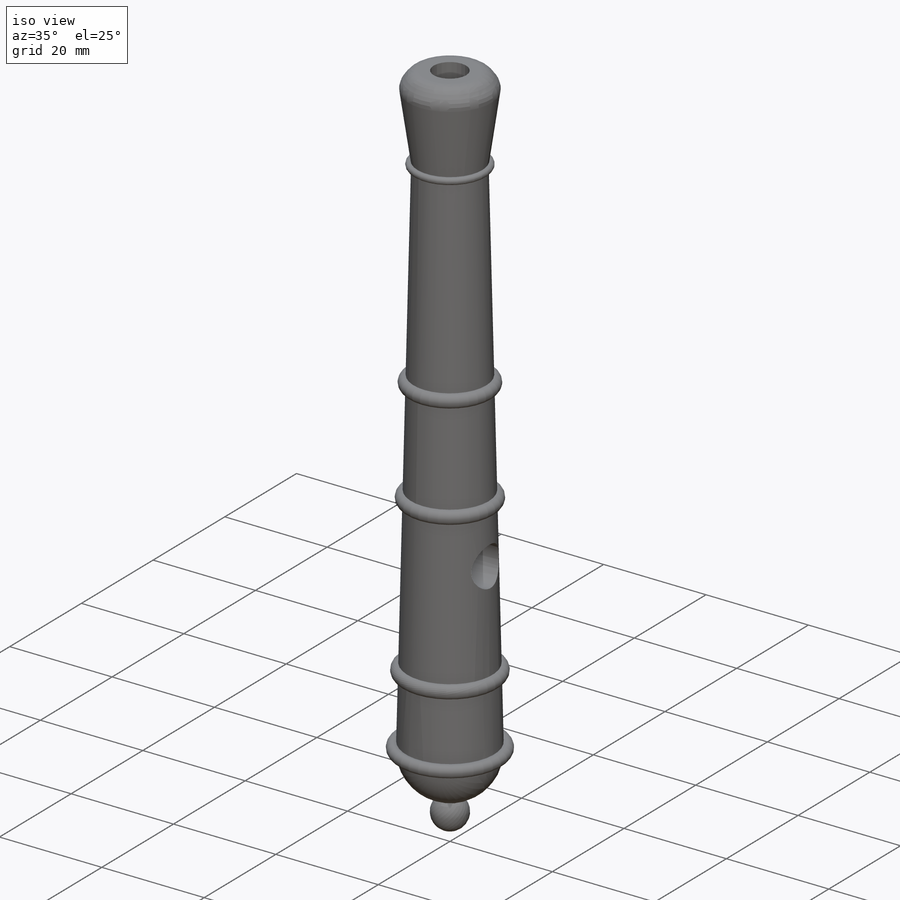
[diagram: iso view]
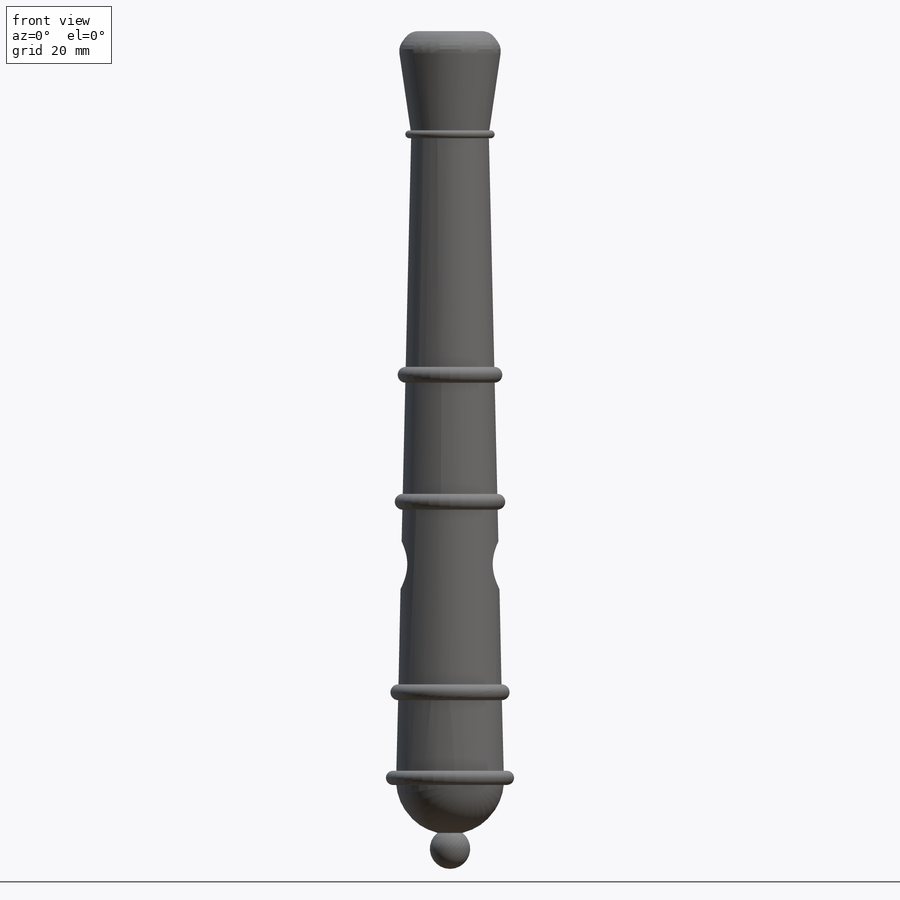
[diagram: front view]
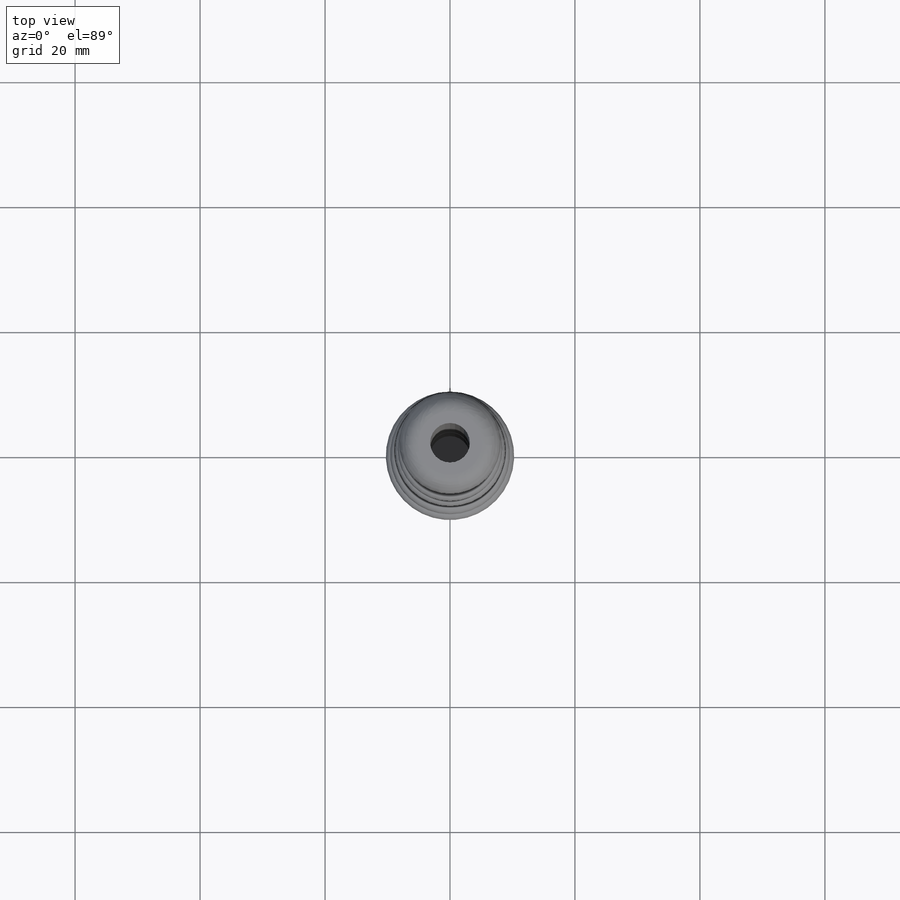
[diagram: top view]
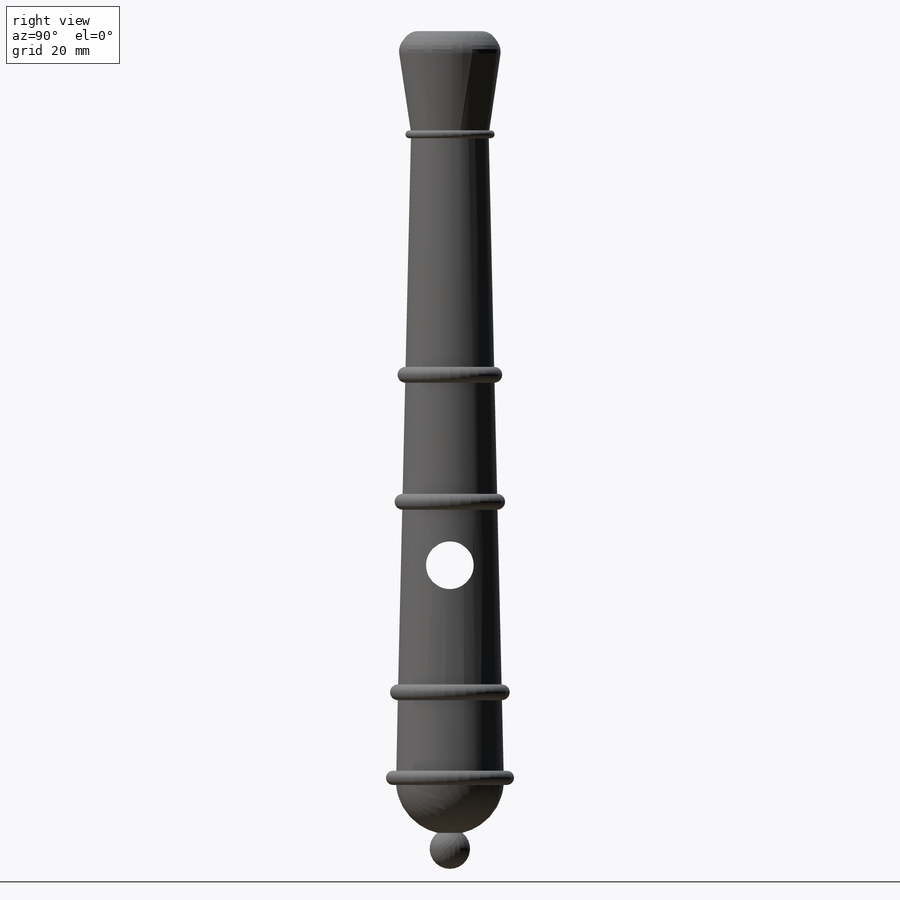
[diagram: right view]
SOLIDWORKS PART (.sldprt)
format: sldprt  version: not decoded by parser v0  size: 365,568 bytes
history: native  units: mm
features: sketch x14, sweep x5, revolve x3, plane x3, fillet x2, cut_extrude x2, material x1, extrude x1, chamfer x1 (+13 scaffold rows collapsed)
feature tree (45):
  scaffold x13  (default folders/planes/origin — collapsed)
  material  "Brass"
  sketch  "Sketch1"  dims[D1=17.272mm]
  extrude  "Boss-Extrude1"  Depth=103.378mm
  sketch  "Sketch5"
  revolve  "Revolve9"  Angle=360deg
  sketch  "Sketch7"
  revolve  "Revolve10"  Angle=360deg
  sketch  "Sketch11"  dims[c1.D1=16.51mm c1.D2=~16.391208mm c2.D2=98.32deg c2.D3=8.636mm]
  revolve  "Revolve11"  Angle=360deg
  chamfer  "Chamfer1"  Distance=2.54mm Angle=45deg
  fillet  "Fillet1"  Radius=2.54mm
  fillet  "Fillet2"  Radius=2.54mm
  sketch  "Sketch12"  dims[D1=6.35mm]
  cut_extrude  "Cut-Extrude1"  Depth=119.888mm
  sketch  "Sketch13"  dims[D1=1.27mm]
  sweep  "Sweep1"
  sketch  "Sketch14"  dims[D1=~0.911162mm]
  sweep  "Sweep2"
  plane  "Plane1"  Offset=37.592mm
  sketch  "Sketch16"  dims[D1=8.3566mm]
  sketch  "Sketch18"  dims[D1=~0.693349mm]
  sweep  "Sweep3"
  plane  "Plane2"  Offset=30.48mm
  sketch  "Sketch19"  dims[D1=7.493mm]
  sketch  "Sketch20"  dims[D1=~1.447523mm]
  sweep  "Sweep4"
  plane  "Plane3"  Offset=20.32mm
  sketch  "Sketch21"  dims[D1=~7.790929mm]
  sketch  "Sketch22"  dims[D1=~0.730321mm]
  sweep  "Sweep5"
  sketch  "Sketch23"  dims[c1.D1=3.175mm c1.D2=7.62mm c2.D1=8.89mm]
  cut_extrude  "Cut-Extrude2"  Depth=19.05mm
decode coverage: 21 of 28 modeling features carry decoded parameters
note: ~ marks probable driven/reference dimensions
summary: profile_refs inferred from adjacent sketches, not decoded
note: suppression state not decoded; provenance and decode notes live in map.json
